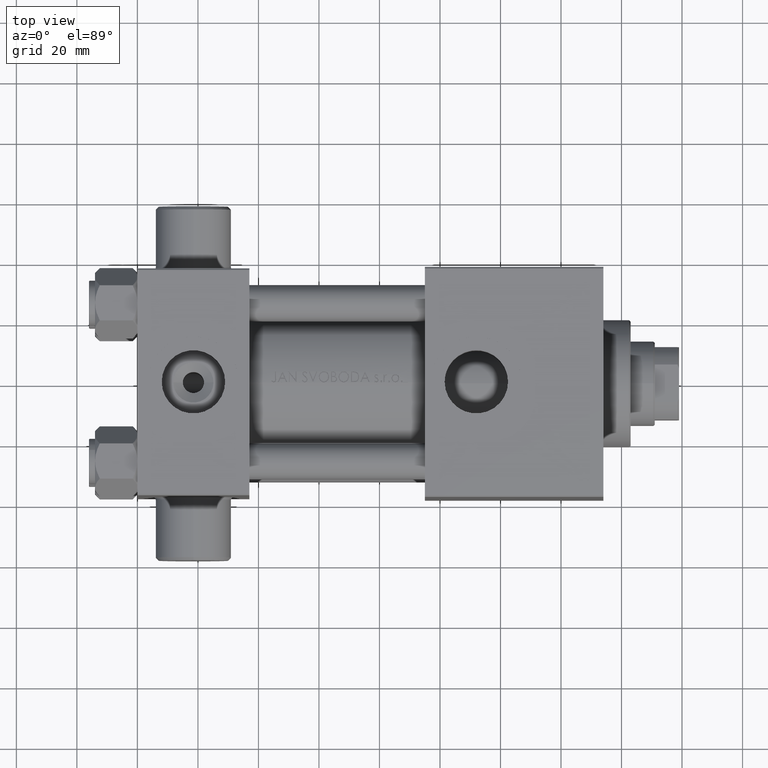
[diagram: clean part render]
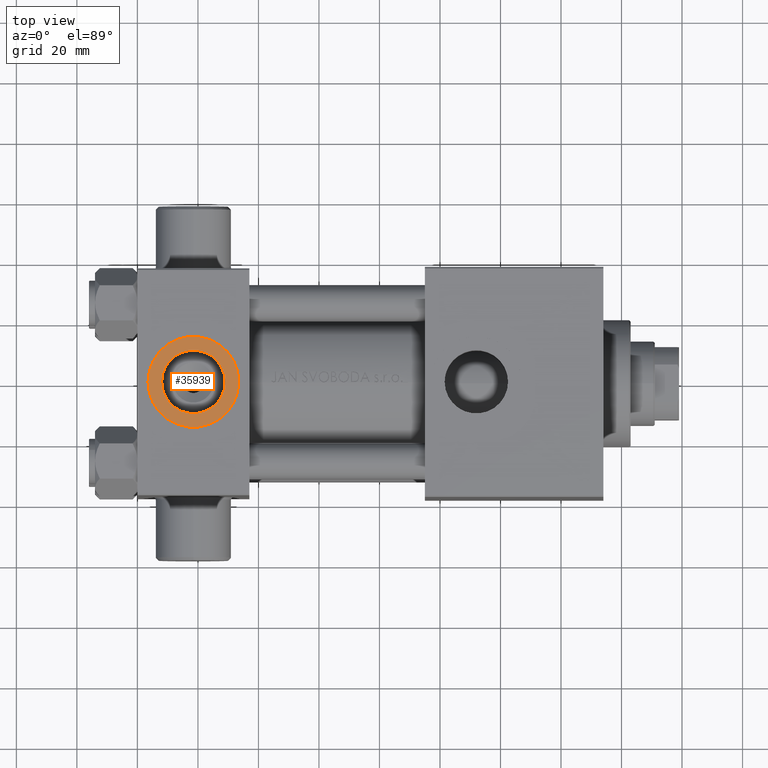
[diagram: same view with one face highlighted and labeled with its STEP entity id]
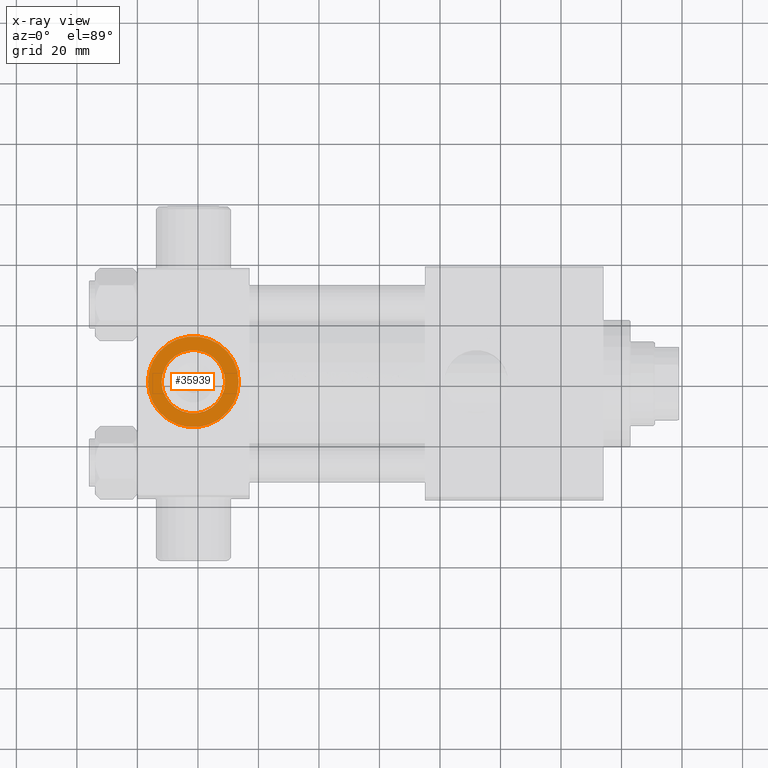
[diagram: x-ray of the same camera — body ghosted, the highlighted face saturated]
A machine part, top view. The second image highlights one B-rep face of the part: STEP entity #35939.
The next image is the same camera in x-ray: the body ghosted, the highlighted face saturated — about 0% of this face is hidden behind the body in this view.
In plain terms, the highlighted planar face has unit normal (0, 0, 1).
Its self-contained STEP definition (entity closure, byte-faithful):
#209 = PLANE ( 'NONE',  #1264 ) ;
#951 = CARTESIAN_POINT ( 'NONE',  ( 18.50000000000000000, -5.204170427930421283E-15, 37.29999999999999716 ) ) ;
#1259 = DIRECTION ( 'NONE',  ( 1.000000000000000000, 0.000000000000000000, 0.000000000000000000 ) ) ;
#1264 = AXIS2_PLACEMENT_3D ( 'NONE', #14940, #29878, #44869 ) ;
#3602 = AXIS2_PLACEMENT_3D ( 'NONE', #14698, #36517, #40937 ) ;
#5039 = EDGE_LOOP ( 'NONE', ( #45419, #20038 ) ) ;
#7404 = VERTEX_POINT ( 'NONE', #42972 ) ;
#8523 = CIRCLE ( 'NONE', #35930, 15.00000000000000355 ) ;
#9717 = CARTESIAN_POINT ( 'NONE',  ( 33.50000000000000000, -5.204170427930421283E-15, 37.29999999999999716 ) ) ;
#10413 = EDGE_CURVE ( 'NONE', #14397, #23584, #8523, .T. ) ;
#10993 = CARTESIAN_POINT ( 'NONE',  ( 3.499999999999997780, -3.367200229209391300E-15, 37.29999999999999716 ) ) ;
#12501 = CARTESIAN_POINT ( 'NONE',  ( 18.50000000000000000, -5.204170427930421283E-15, 37.29999999999999716 ) ) ;
#14397 = VERTEX_POINT ( 'NONE', #10993 ) ;
#14698 = CARTESIAN_POINT ( 'NONE',  ( 18.50000000000000000, -5.204170427930421283E-15, 37.29999999999999716 ) ) ;
#14940 = CARTESIAN_POINT ( 'NONE',  ( 18.50000000000000000, -5.204170427930421283E-15, 37.29999999999999716 ) ) ;
#16388 = DIRECTION ( 'NONE',  ( 1.000000000000000000, 0.000000000000000000, 0.000000000000000000 ) ) ;
#16414 = DIRECTION ( 'NONE',  ( 0.000000000000000000, 0.000000000000000000, 1.000000000000000000 ) ) ;
#18141 = CARTESIAN_POINT ( 'NONE',  ( 8.019999999999999574, -3.920740582423995006E-15, 37.29999999999999716 ) ) ;
#19769 = CIRCLE ( 'NONE', #44095, 10.48000000000000043 ) ;
#20038 = ORIENTED_EDGE ( 'NONE', *, *, #22914, .F. ) ;
#22094 = VERTEX_POINT ( 'NONE', #18141 ) ;
#22914 = EDGE_CURVE ( 'NONE', #22094, #7404, #19769, .T. ) ;
#23544 = CARTESIAN_POINT ( 'NONE',  ( 18.50000000000000000, -5.204170427930421283E-15, 37.29999999999999716 ) ) ;
#23584 = VERTEX_POINT ( 'NONE', #9717 ) ;
#25496 = CIRCLE ( 'NONE', #41949, 15.00000000000000355 ) ;
#29878 = DIRECTION ( 'NONE',  ( 0.000000000000000000, 0.000000000000000000, 1.000000000000000000 ) ) ;
#33561 = FACE_BOUND ( 'NONE', #5039, .T. ) ;
#34000 = EDGE_LOOP ( 'NONE', ( #35297, #40697 ) ) ;
#34366 = DIRECTION ( 'NONE',  ( 0.000000000000000000, 0.000000000000000000, 1.000000000000000000 ) ) ;
#34448 = EDGE_CURVE ( 'NONE', #23584, #14397, #25496, .T. ) ;
#35297 = ORIENTED_EDGE ( 'NONE', *, *, #34448, .T. ) ;
#35883 = EDGE_CURVE ( 'NONE', #7404, #22094, #48260, .T. ) ;
#35930 = AXIS2_PLACEMENT_3D ( 'NONE', #951, #38215, #16388 ) ;
#35939 = ADVANCED_FACE ( 'NONE', ( #33561, #48549 ), #209, .T. ) ;
#36517 = DIRECTION ( 'NONE',  ( 0.000000000000000000, 0.000000000000000000, 1.000000000000000000 ) ) ;
#38215 = DIRECTION ( 'NONE',  ( 0.000000000000000000, 0.000000000000000000, 1.000000000000000000 ) ) ;
#40697 = ORIENTED_EDGE ( 'NONE', *, *, #10413, .T. ) ;
#40937 = DIRECTION ( 'NONE',  ( 1.000000000000000000, 0.000000000000000000, 0.000000000000000000 ) ) ;
#41949 = AXIS2_PLACEMENT_3D ( 'NONE', #12501, #16414, #42423 ) ;
#42423 = DIRECTION ( 'NONE',  ( 1.000000000000000000, 0.000000000000000000, 0.000000000000000000 ) ) ;
#42972 = CARTESIAN_POINT ( 'NONE',  ( 28.98000000000000043, -5.204170427930421283E-15, 37.29999999999999716 ) ) ;
#44095 = AXIS2_PLACEMENT_3D ( 'NONE', #23544, #34366, #1259 ) ;
#44869 = DIRECTION ( 'NONE',  ( 1.000000000000000000, 0.000000000000000000, -0.000000000000000000 ) ) ;
#45419 = ORIENTED_EDGE ( 'NONE', *, *, #35883, .F. ) ;
#48260 = CIRCLE ( 'NONE', #3602, 10.48000000000000043 ) ;
#48549 = FACE_OUTER_BOUND ( 'NONE', #34000, .T. ) ;